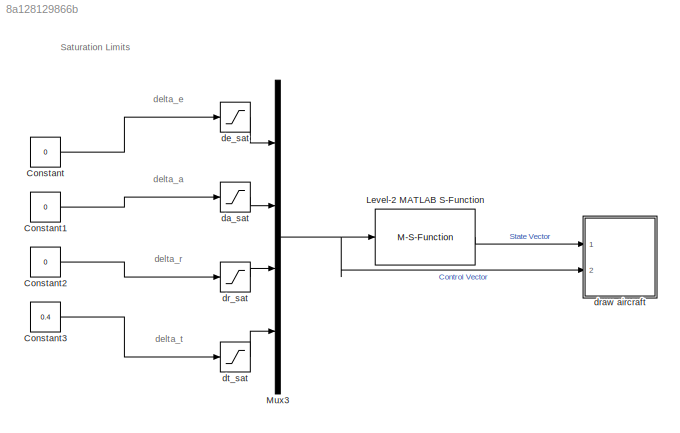
MODEL slx_8a128129866b
KIND model
CONFIG AbsTol = auto
CONFIG EnableMultiTasking = off
CONFIG FixedStep = auto
CONFIG InitFcn = parameters
CONFIG MaxStep = auto
CONFIG MinStep = 1e-200
CONFIG RelTol = 1e-3
CONFIG SampleTimeConstraint = Unconstrained
CONFIG SolverName = ode15s
CONFIG StartTime = 0.0
CONFIG StopTime = 10000
BLOCK [Constant] Constant
  Value = 0
BLOCK [Constant] Constant1
  Value = 0
BLOCK [Constant] Constant2
  Value = 0
BLOCK [Constant] Constant3
  Value = 0.4
BLOCK [M-S-Function] Level-2 MATLAB S-Function
  FunctionName = aircraft_dynamics
  Parameters = P
  Ports = [1, 1]
BLOCK [Mux] Mux3
  DisplayOption = bar
  Ports = [4, 1]
BLOCK [Saturate] da_sat
  LowerLimit = -50
  UpperLimit = 50
BLOCK [Saturate] de_sat
  LowerLimit = -50
  UpperLimit = 50
BLOCK [Saturate] dr_sat
  LowerLimit = -50
  UpperLimit = 50
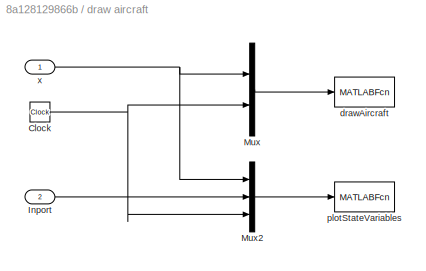
BLOCK [SubSystem] draw aircraft
  Ports = [2]
  RequestExecContextInheritance = off
BLOCK [Clock] draw aircraft/Clock
BLOCK [Inport] draw aircraft/Inport
  Port = 2
BLOCK [Mux] draw aircraft/Mux
  DisplayOption = bar
  Inputs = 2
  Ports = [2, 1]
BLOCK [Mux] draw aircraft/Mux2
  DisplayOption = bar
  Inputs = 3
  Ports = [3, 1]
BLOCK [MATLABFcn] draw aircraft/drawAircraft
  MATLABFcn = drawAircraft(u)
  OutputDimensions = 0
  Ports = [1]
  SampleTime = 0.1
BLOCK [MATLABFcn] draw aircraft/plotStateVariables
  MATLABFcn = plotmavstatevariables(u)
  OutputDimensions = 0
  Ports = [1]
  SampleTime = 0.1
BLOCK [Inport] draw aircraft/x
BLOCK [Saturate] dt_sat
  LowerLimit = 0
  UpperLimit = 1
ANNOTATION (root): Saturation Limits
ANNOTATION (root): delta_a
ANNOTATION (root): delta_e
ANNOTATION (root): delta_r
ANNOTATION (root): delta_t
LINE Constant1:1 -> da_sat:1
LINE Constant2:1 -> dr_sat:1
LINE Constant3:1 -> dt_sat:1
LINE Constant:1 -> de_sat:1
LINE Level-2 MATLAB S-Function:1 -> draw aircraft:1
NET Mux3:1 -> Level-2 MATLAB S-Function:1, draw aircraft:2
LINE da_sat:1 -> Mux3:2
LINE de_sat:1 -> Mux3:1
LINE dr_sat:1 -> Mux3:3
NET draw aircraft/Clock:1 -> draw aircraft/Mux2:3, draw aircraft/Mux:2
LINE draw aircraft/Inport:1 -> draw aircraft/Mux2:2
LINE draw aircraft/Mux2:1 -> draw aircraft/plotStateVariables:1
LINE draw aircraft/Mux:1 -> draw aircraft/drawAircraft:1
NET draw aircraft/x:1 -> draw aircraft/Mux2:1, draw aircraft/Mux:1
LINE dt_sat:1 -> Mux3:4
note: NET lines group one-source signal fan-out (src -> all destinations, sorted); 1:1 wires keep LINE
